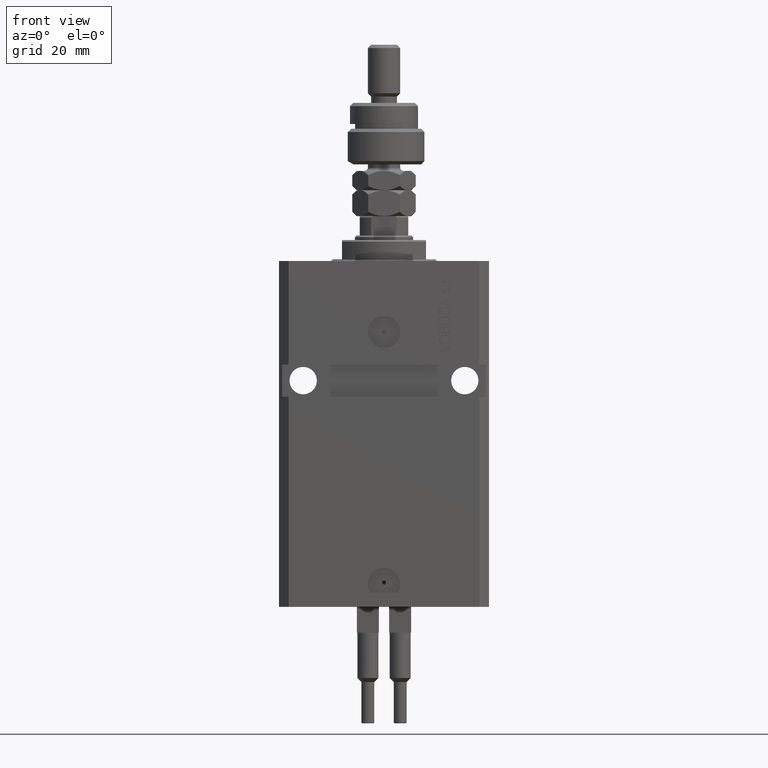
[diagram: clean part render]
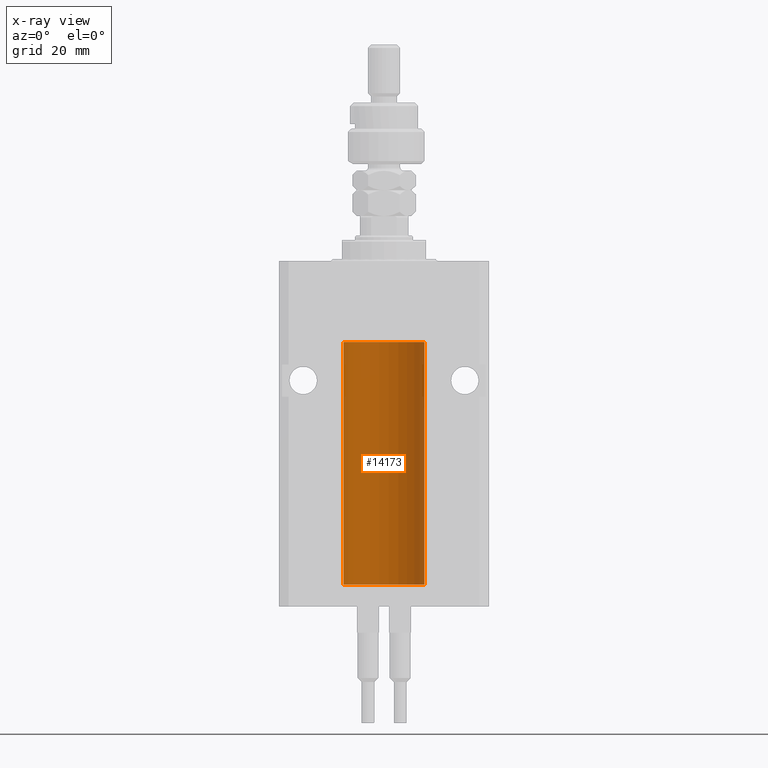
[diagram: x-ray — body ghosted, one internal face saturated and labeled with its STEP entity id]
A machine part, front view, then the same camera in x-ray: the body is ghosted and one INTERNAL B-rep face — a face not visible from any outside direction — is saturated and labeled: STEP entity #14173.
In plain terms, the highlighted cylindrical surface (partial cylindrical patch) has radius 12.5 mm, axis along (0, 0, 1).
Its self-contained STEP definition (entity closure, byte-faithful):
#669 = EDGE_CURVE ( 'NONE', #38494, #16014, #50071, .T. ) ;
#962 = CARTESIAN_POINT ( 'NONE',  ( 12.48436522214888100, 0.6249999999996834754, -94.91847339462351840 ) ) ;
#1506 = CARTESIAN_POINT ( 'NONE',  ( -12.50000000000000000, 1.530808498934191521E-15, -25.10000000000000142 ) ) ;
#2161 = VECTOR ( 'NONE', #30843, 1000.000000000000000 ) ;
#2426 = CARTESIAN_POINT ( 'NONE',  ( 12.48436522214885969, 0.6250000000001505462, -95.16312747540308692 ) ) ;
#2449 = CARTESIAN_POINT ( 'NONE',  ( 0.000000000000000000, 0.000000000000000000, -25.10000000000000142 ) ) ;
#2695 = CARTESIAN_POINT ( 'NONE',  ( -12.50000000000000000, 1.530808498934191521E-15, -100.0999999999999943 ) ) ;
#3191 = CARTESIAN_POINT ( 'NONE',  ( 12.49421963472024721, 0.3844519291903572555, -95.49947303647047647 ) ) ;
#4349 = CARTESIAN_POINT ( 'NONE',  ( 12.50000000000017941, 3.868073689162038701E-13, -94.37499999999640465 ) ) ;
#6306 = CARTESIAN_POINT ( 'NONE',  ( 12.48436522214846711, 0.6250000000078848039, -94.99999999999923261 ) ) ;
#7369 = B_SPLINE_CURVE_WITH_KNOTS ( 'NONE', 3,
 ( #38496, #45749, #49655, #10948, #3191, #26281, #2426, #6306 ),
 .UNSPECIFIED., .F., .F.,
 ( 4, 2, 2, 4 ),
 ( 1.784246692340212412E-18, 0.0002443481056285665750, 0.0004886962112571313068, 0.0009773924225142606621 ),
 .UNSPECIFIED. ) ;
#7530 = AXIS2_PLACEMENT_3D ( 'NONE', #14691, #8671, #40345 ) ;
#8671 = DIRECTION ( 'NONE',  ( 0.000000000000000000, 0.000000000000000000, 1.000000000000000000 ) ) ;
#10548 = EDGE_CURVE ( 'NONE', #23988, #20335, #49996, .T. ) ;
#10606 = CARTESIAN_POINT ( 'NONE',  ( -12.50000000000017941, 3.883381774819353300E-13, -95.62500000000359535 ) ) ;
#10668 = CARTESIAN_POINT ( 'NONE',  ( -12.49625855304194033, 0.3150454781037993479, -94.45402800297488000 ) ) ;
#10838 = ORIENTED_EDGE ( 'NONE', *, *, #24431, .F. ) ;
#10948 = CARTESIAN_POINT ( 'NONE',  ( 12.49625698805481022, 0.3151108292486944906, -95.54593695688171806 ) ) ;
#12897 = CARTESIAN_POINT ( 'NONE',  ( 12.49631206032076136, 0.3252904079142934779, -94.44139700214928723 ) ) ;
#13975 = ORIENTED_EDGE ( 'NONE', *, *, #44789, .T. ) ;
#14112 = DIRECTION ( 'NONE',  ( 0.000000000000000000, 0.000000000000000000, 1.000000000000000000 ) ) ;
#14173 = ADVANCED_FACE ( 'NONE', ( #19077 ), #35452, .F. ) ;
#14691 = CARTESIAN_POINT ( 'NONE',  ( 0.000000000000000000, 0.000000000000000000, -100.0999999999999943 ) ) ;
#14872 = DIRECTION ( 'NONE',  ( -0.000000000000000000, -0.000000000000000000, 1.000000000000000000 ) ) ;
#15299 = VERTEX_POINT ( 'NONE', #2695 ) ;
#16014 = VERTEX_POINT ( 'NONE', #1506 ) ;
#16039 = CARTESIAN_POINT ( 'NONE',  ( 12.49012055744648997, 0.5002956126656082914, -94.61641710202405875 ) ) ;
#16544 = CARTESIAN_POINT ( 'NONE',  ( 12.48520578595314845, 0.6087855079133740466, -94.83656717509346379 ) ) ;
#16671 = DIRECTION ( 'NONE',  ( -0.000000000000000000, -0.000000000000000000, 1.000000000000000000 ) ) ;
#16797 = CARTESIAN_POINT ( 'NONE',  ( 12.48810305280568222, 0.5461368461738485003, -94.68525466142676805 ) ) ;
#18509 = LINE ( 'NONE', #50178, #42361 ) ;
#18955 = AXIS2_PLACEMENT_3D ( 'NONE', #38825, #27146, #50245 ) ;
#19077 = FACE_OUTER_BOUND ( 'NONE', #29194, .T. ) ;
#19450 = VERTEX_POINT ( 'NONE', #42197 ) ;
#20335 = VERTEX_POINT ( 'NONE', #4349 ) ;
#21152 = CARTESIAN_POINT ( 'NONE',  ( 12.50000000000000000, 0.000000000000000000, -25.10000000000000142 ) ) ;
#21697 = VECTOR ( 'NONE', #43411, 1000.000000000000000 ) ;
#22364 = CARTESIAN_POINT ( 'NONE',  ( -12.50000000000000000, 0.08260426088727994276, -94.37499999999998579 ) ) ;
#22764 = ORIENTED_EDGE ( 'NONE', *, *, #23429, .F. ) ;
#22794 = EDGE_CURVE ( 'NONE', #15299, #49431, #18509, .T. ) ;
#22876 = CARTESIAN_POINT ( 'NONE',  ( -12.50000000000017941, 3.883381774819353300E-13, -95.62500000000359535 ) ) ;
#23429 = EDGE_CURVE ( 'NONE', #29924, #15299, #37421, .T. ) ;
#23808 = CARTESIAN_POINT ( 'NONE',  ( 12.50000000000000000, 0.000000000000000000, -100.0999999999999943 ) ) ;
#23988 = VERTEX_POINT ( 'NONE', #41946 ) ;
#24431 = EDGE_CURVE ( 'NONE', #49832, #16014, #39271, .T. ) ;
#26154 = EDGE_CURVE ( 'NONE', #49832, #49431, #41865, .T. ) ;
#26253 = CARTESIAN_POINT ( 'NONE',  ( -12.49631005746706514, 0.3253680783018457756, -95.55856740465388555 ) ) ;
#26281 = CARTESIAN_POINT ( 'NONE',  ( 12.48809900631782099, 0.5573988467445673001, -95.32640147935475738 ) ) ;
#26509 = CARTESIAN_POINT ( 'NONE',  ( -12.48810268015257741, 0.5573155909661239304, -94.67347410093871929 ) ) ;
#26773 = CARTESIAN_POINT ( 'NONE',  ( -12.50000000000000000, -1.522152011595579853E-14, -94.37500000000000000 ) ) ;
#27146 = DIRECTION ( 'NONE',  ( -0.000000000000000000, -0.000000000000000000, 1.000000000000000000 ) ) ;
#28741 = CARTESIAN_POINT ( 'NONE',  ( 12.49999999999999822, 0.1631389616600901760, -94.37500000000024158 ) ) ;
#29194 = EDGE_LOOP ( 'NONE', ( #50874, #22764, #49335, #39749, #49369, #13975, #50619, #10838, #36090 ) ) ;
#29199 = EDGE_CURVE ( 'NONE', #29924, #19450, #31942, .T. ) ;
#29444 = DIRECTION ( 'NONE',  ( 1.000000000000000000, 0.000000000000000000, 0.000000000000000000 ) ) ;
#29901 = CARTESIAN_POINT ( 'NONE',  ( -12.49915784441387068, 0.1636601911727894876, -94.39126818989429069 ) ) ;
#29924 = VERTEX_POINT ( 'NONE', #35158 ) ;
#30667 = VECTOR ( 'NONE', #16671, 1000.000000000000000 ) ;
#30843 = DIRECTION ( 'NONE',  ( -0.000000000000000000, -0.000000000000000000, 1.000000000000000000 ) ) ;
#31880 = CARTESIAN_POINT ( 'NONE',  ( 12.48436522214846711, 0.6250000000078848039, -94.99999999999923261 ) ) ;
#31942 = LINE ( 'NONE', #44427, #30667 ) ;
#32082 = CARTESIAN_POINT ( 'NONE',  ( -12.50000000000000000, -1.522152011595579853E-14, -94.37500000000000000 ) ) ;
#35158 = CARTESIAN_POINT ( 'NONE',  ( 12.50000000000000000, 0.000000000000000000, -100.0999999999999943 ) ) ;
#35452 = CYLINDRICAL_SURFACE ( 'NONE', #18955, 12.50000000000000000 ) ;
#36090 = ORIENTED_EDGE ( 'NONE', *, *, #26154, .T. ) ;
#37421 = CIRCLE ( 'NONE', #7530, 12.50000000000000000 ) ;
#37964 = CARTESIAN_POINT ( 'NONE',  ( -12.49422197749723829, 0.3843754434364257122, -94.50047099568094211 ) ) ;
#38494 = VERTEX_POINT ( 'NONE', #21152 ) ;
#38496 = CARTESIAN_POINT ( 'NONE',  ( 12.50000000000000000, -1.836039810331332019E-15, -95.62500000000000000 ) ) ;
#38825 = CARTESIAN_POINT ( 'NONE',  ( 0.000000000000000000, 0.000000000000000000, -100.0999999999999943 ) ) ;
#38888 = LINE ( 'NONE', #23808, #2161 ) ;
#39271 = LINE ( 'NONE', #51211, #21697 ) ;
#39293 = AXIS2_PLACEMENT_3D ( 'NONE', #2449, #14112, #29444 ) ;
#39749 = ORIENTED_EDGE ( 'NONE', *, *, #44084, .T. ) ;
#40345 = DIRECTION ( 'NONE',  ( 1.000000000000000000, 0.000000000000000000, 0.000000000000000000 ) ) ;
#41865 = B_SPLINE_CURVE_WITH_KNOTS ( 'NONE', 3,
 ( #26773, #22364, #29901, #10668, #37964, #26509, #45469, #42092, #42341, #49626, #42603, #26253, #45978, #22876 ),
 .UNSPECIFIED., .F., .F.,
 ( 4, 2, 2, 2, 2, 2, 4 ),
 ( 3.486178718436696769E-18, 0.0002442924852390829216, 0.0004885849704781623738, 0.0009771699409563507684, 0.001221462426195465403, 0.001465754911434580254, 0.001954339881912780900 ),
 .UNSPECIFIED. ) ;
#41946 = CARTESIAN_POINT ( 'NONE',  ( 12.48436522214846711, 0.6250000000078848039, -94.99999999999923261 ) ) ;
#42092 = CARTESIAN_POINT ( 'NONE',  ( -12.48436376893640620, 0.6250290278979871994, -95.08132082824478459 ) ) ;
#42197 = CARTESIAN_POINT ( 'NONE',  ( 12.50000000000000000, -1.836039810331332019E-15, -95.62500000000000000 ) ) ;
#42341 = CARTESIAN_POINT ( 'NONE',  ( -12.48520330846397997, 0.6088355886774070580, -95.16325431852561678 ) ) ;
#42361 = VECTOR ( 'NONE', #14872, 1000.000000000000000 ) ;
#42603 = CARTESIAN_POINT ( 'NONE',  ( -12.49011732893843529, 0.5003763274120199833, -95.38348111289285214 ) ) ;
#43411 = DIRECTION ( 'NONE',  ( -0.000000000000000000, -0.000000000000000000, 1.000000000000000000 ) ) ;
#44084 = EDGE_CURVE ( 'NONE', #19450, #23988, #7369, .T. ) ;
#44427 = CARTESIAN_POINT ( 'NONE',  ( 12.50000000000000000, 0.000000000000000000, -100.0999999999999943 ) ) ;
#44789 = EDGE_CURVE ( 'NONE', #20335, #38494, #38888, .T. ) ;
#45469 = CARTESIAN_POINT ( 'NONE',  ( -12.48436813453758631, 0.6249418250771134886, -94.83668996798924411 ) ) ;
#45749 = CARTESIAN_POINT ( 'NONE',  ( 12.49999999999999822, 0.08262306818362624705, -95.62499999999998579 ) ) ;
#45978 = CARTESIAN_POINT ( 'NONE',  ( -12.49999999999999112, 0.1631761135151224562, -95.62499999999980105 ) ) ;
#47956 = CARTESIAN_POINT ( 'NONE',  ( 12.50000000000017941, 3.868073689162038701E-13, -94.37499999999640465 ) ) ;
#49335 = ORIENTED_EDGE ( 'NONE', *, *, #29199, .T. ) ;
#49369 = ORIENTED_EDGE ( 'NONE', *, *, #10548, .T. ) ;
#49431 = VERTEX_POINT ( 'NONE', #10606 ) ;
#49626 = CARTESIAN_POINT ( 'NONE',  ( -12.48809959379011403, 0.5462151254764922026, -95.31461370481613926 ) ) ;
#49655 = CARTESIAN_POINT ( 'NONE',  ( 12.49915742890631876, 0.1636982395582385896, -95.60872397847028026 ) ) ;
#49832 = VERTEX_POINT ( 'NONE', #32082 ) ;
#49996 = B_SPLINE_CURVE_WITH_KNOTS ( 'NONE', 3,
 ( #31880, #962, #16544, #16797, #16039, #12897, #28741, #47956 ),
 .UNSPECIFIED., .F., .F.,
 ( 4, 2, 2, 4 ),
 ( 0.0009773924225142606621, 0.001221629287363811033, 0.001465866152213361404, 0.001954339881912461711 ),
 .UNSPECIFIED. ) ;
#50071 = CIRCLE ( 'NONE', #39293, 12.50000000000000000 ) ;
#50178 = CARTESIAN_POINT ( 'NONE',  ( -12.50000000000000000, 1.530808498934191521E-15, -100.0999999999999943 ) ) ;
#50245 = DIRECTION ( 'NONE',  ( 1.000000000000000000, 0.000000000000000000, 0.000000000000000000 ) ) ;
#50619 = ORIENTED_EDGE ( 'NONE', *, *, #669, .T. ) ;
#50874 = ORIENTED_EDGE ( 'NONE', *, *, #22794, .F. ) ;
#51211 = CARTESIAN_POINT ( 'NONE',  ( -12.50000000000000000, 1.530808498934191521E-15, -100.0999999999999943 ) ) ;